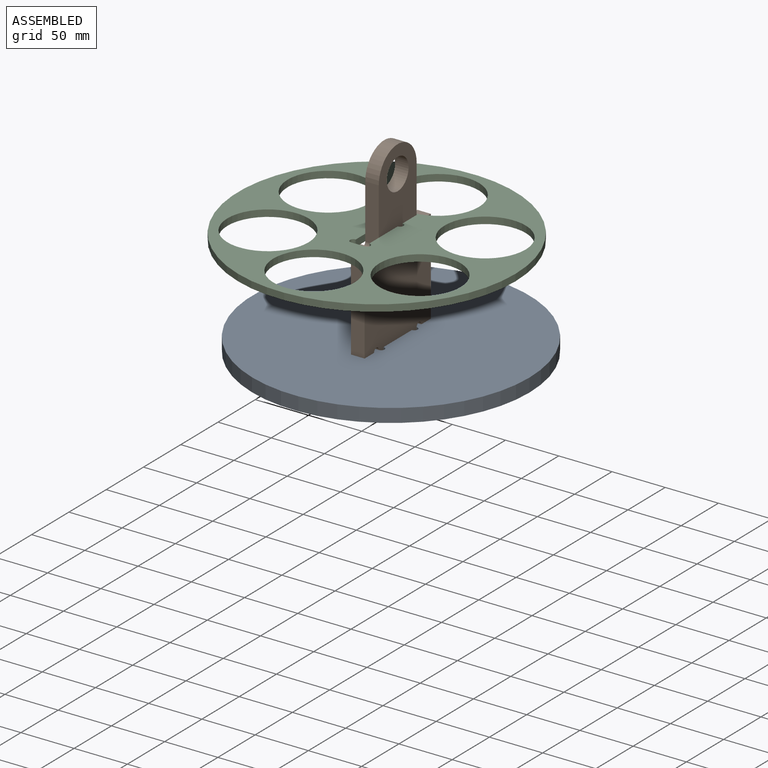
[diagram: assembled view]
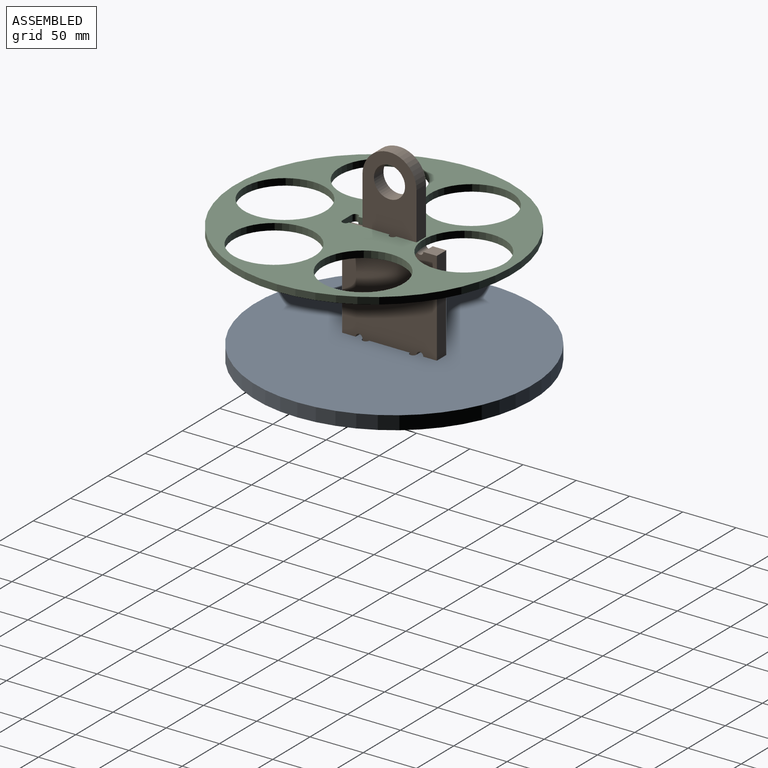
[diagram: assembled view, second angle]
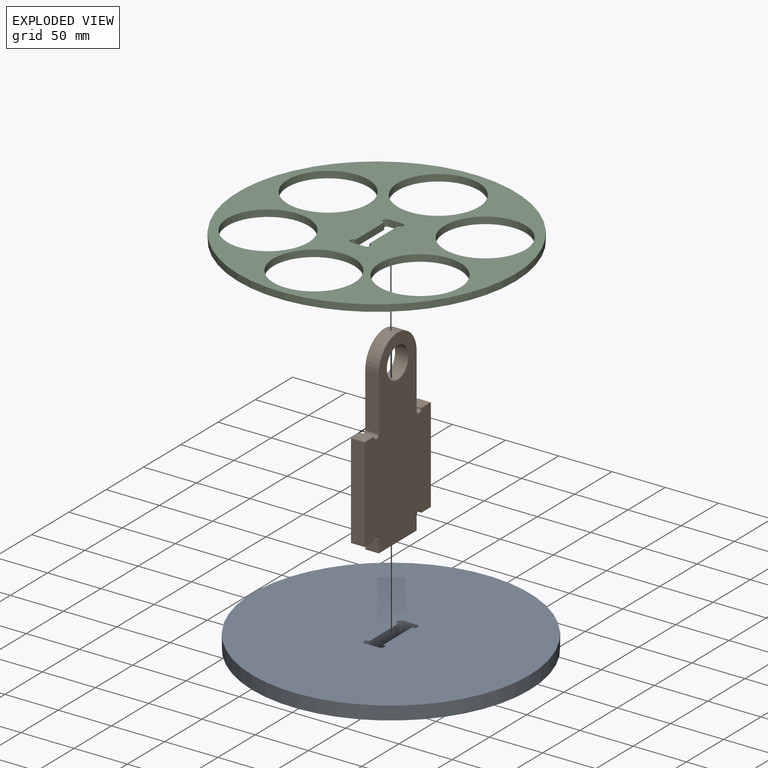
[diagram: exploded view]
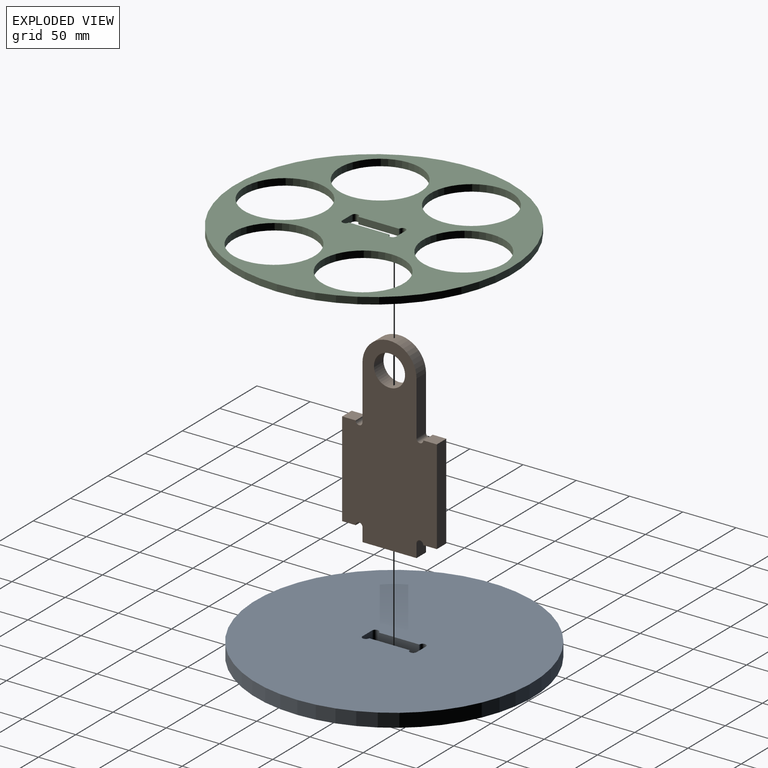
[diagram: exploded view, second angle]
ASSEMBLY  parts=3 mates=2
PART A: 11 faces, bbox 260.4x260.4x12.7 mm
  f0: cylinder r=3.17mm len=12.7mm, axis (0,0,-1), area 126.7mm2, adj f1,f7,f9,f10
  f1: plane 12.7x12.7mm, normal (0,-1,0), area 161.3mm2, adj f0,f2,f9,f10
  f2: cylinder r=3.17mm len=12.7mm, axis (0,0,-1), area 126.7mm2, adj f1,f3,f9,f10
  f3: plane 38.1x12.7mm, normal (-1,0,0), area 483.9mm2, adj f2,f4,f9,f10
  f4: cylinder r=3.17mm len=12.7mm, axis (0,0,-1), area 126.7mm2, adj f3,f5,f9,f10
  f5: plane 12.7x12.7mm, normal (0,1,0), area 161.3mm2, adj f4,f6,f9,f10
  f6: cylinder r=3.17mm len=12.7mm, axis (0,0,-1), area 126.7mm2, adj f5,f7,f9,f10
  f7: plane 38.1x12.7mm, normal (1,0,0), area 483.9mm2, adj f0,f6,f9,f10
  f8: cylinder r=130.18mm len=260.35mm, axis (0,0,-1), area 10387.5mm2, adj f9,f10
  f9: plane 260.35x260.35mm, normal (0,0,1), area 52527.5mm2, adj f0,f1,f2,f3,f4,f5,f6,f7
  f10: plane 260.35x260.35mm, normal (0,0,-1), area 52527.5mm2, adj f0,f1,f2,f3,f4,f5,f6,f7
PART B: 19 faces, bbox 88.9x12.7x177.8 mm
  f0: plane 50.8x12.7mm, normal (1,0,0), area 645.2mm2, adj f1,f16,f17,f18
  f1: cylinder r=25.4mm len=50.8mm, axis (0,1,0), area 1013.4mm2, adj f0,f2,f17,f18
  f2: plane 50.8x12.7mm, normal (-1,0,0), area 645.2mm2, adj f1,f3,f17,f18
  f3: cylinder r=3.17mm len=12.7mm, axis (0,1,0), area 126.7mm2, adj f2,f4,f17,f18
  f4: plane 12.7x12.7mm, normal (0,0,1), area 161.3mm2, adj f3,f5,f17,f18
  f5: plane 88.9x12.7mm, normal (-1,0,0), area 1129mm2, adj f4,f6,f17,f18
  f6: plane 12.7x12.7mm, normal (0,0,-1), area 161.3mm2, adj f5,f7,f17,f18
  f7: cylinder r=3.17mm len=12.7mm, axis (0,1,0), area 126.7mm2, adj f6,f8,f17,f18
  f8: plane 12.7x12.7mm, normal (-1,0,0), area 161.3mm2, adj f7,f9,f17,f18
  f9: plane 50.8x12.7mm, normal (0,0,-1), area 645.2mm2, adj f8,f10,f17,f18
  f10: plane 12.7x12.7mm, normal (1,0,0), area 161.3mm2, adj f9,f11,f17,f18
  f11: cylinder r=3.17mm len=12.7mm, axis (0,1,0), area 126.7mm2, adj f10,f12,f17,f18
  f12: plane 12.7x12.7mm, normal (0,0,-1), area 161.3mm2, adj f11,f13,f17,f18
  f13: plane 88.9x12.7mm, normal (1,0,0), area 1129mm2, adj f12,f14,f17,f18
  f14: plane 12.7x12.7mm, normal (0,0,1), area 161.3mm2, adj f13,f16,f17,f18
  f15: cylinder r=14.61mm len=29.21mm, axis (0,1,0), area 1165.4mm2, adj f17,f18
  f16: cylinder r=3.17mm len=12.7mm, axis (0,1,0), area 126.7mm2, adj f0,f14,f17,f18
  f17: plane 177.8x88.9mm, normal (0,-1,0), area 11409mm2, adj f0,f1,f2,f3,f4,f5,f6,f7
  f18: plane 177.8x88.9mm, normal (0,1,0), area 11409mm2, adj f0,f1,f2,f3,f4,f5,f6,f7
PART C: 17 faces, bbox 260.4x260.4x6.4 mm
  f0: cylinder r=3.17mm len=6.35mm, axis (0,0,-1), area 63.3mm2, adj f1,f13,f15,f16
  f1: plane 12.7x6.35mm, normal (0,-1,0), area 80.6mm2, adj f0,f2,f15,f16
  f2: cylinder r=3.17mm len=6.35mm, axis (0,0,-1), area 63.3mm2, adj f1,f3,f15,f16
  f3: plane 38.1x6.35mm, normal (-1,0,0), area 241.9mm2, adj f2,f4,f15,f16
  f4: cylinder r=3.17mm len=6.35mm, axis (0,0,-1), area 63.3mm2, adj f3,f5,f15,f16
  f5: plane 12.7x6.35mm, normal (0,1,0), area 80.6mm2, adj f4,f6,f15,f16
  f6: cylinder r=3.17mm len=6.35mm, axis (0,0,-1), area 63.3mm2, adj f5,f13,f15,f16
  f7: cylinder r=38.1mm len=76.2mm, axis (0,0,-1), area 1520.1mm2, adj f15,f16
  f8: cylinder r=38.1mm len=76.2mm, axis (0,0,-1), area 1520.1mm2, adj f15,f16
  f9: cylinder r=38.1mm len=76.2mm, axis (0,0,-1), area 1520.1mm2, adj f15,f16
  f10: cylinder r=38.1mm len=76.2mm, axis (0,0,-1), area 1520.1mm2, adj f15,f16
  f11: cylinder r=38.1mm len=76.2mm, axis (0,0,-1), area 1520.1mm2, adj f15,f16
  f12: cylinder r=38.1mm len=76.2mm, axis (0,0,-1), area 1520.1mm2, adj f15,f16
  f13: plane 38.1x6.35mm, normal (1,0,0), area 241.9mm2, adj f0,f6,f15,f16
  f14: cylinder r=130.18mm len=260.35mm, axis (0,0,-1), area 5193.8mm2, adj f15,f16
  f15: plane 260.35x260.35mm, normal (0,0,1), area 25165.3mm2, adj f0,f1,f2,f3,f4,f5,f6,f7
  f16: plane 260.35x260.35mm, normal (0,0,-1), area 25165.3mm2, adj f0,f1,f2,f3,f4,f5,f6,f7
PLACE A t=(-146.22,-73.21,-36.43)mm
PLACE B rot(axis=(0,0,-1),90deg) t=(-139.87,-67.46,-135.35)mm
PLACE C t=(-146.22,-92.26,65.17)mm
MATE fastened C.f16 <-> B.f14  axis (0,0,-1) through (-146.22,-117.66,65.17)mm
MATE fastened A.f10 <-> B.f9  axis (0,0,-1) through (-139.87,-73.21,-36.43)mm
